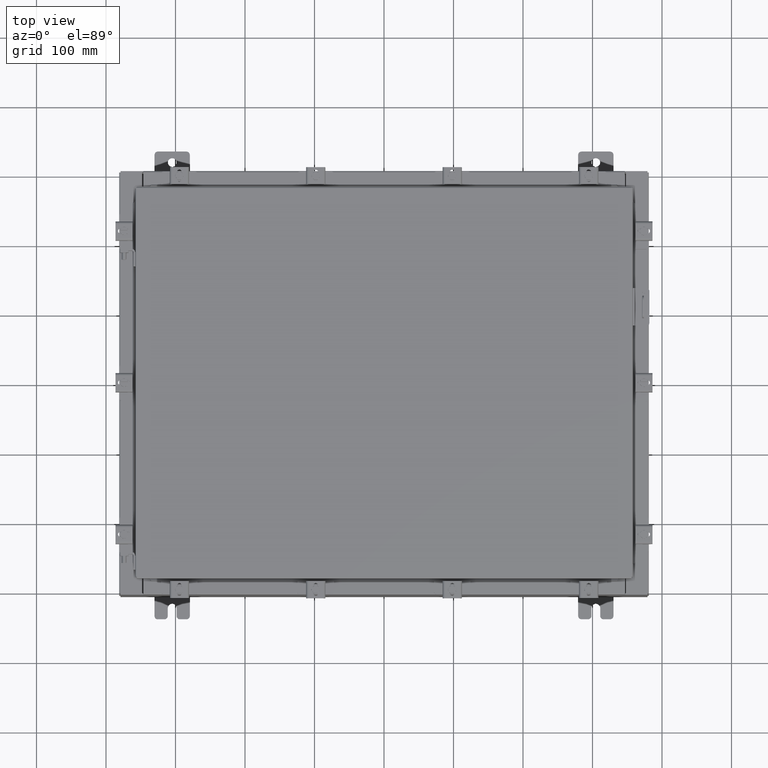
[diagram: clean part render]
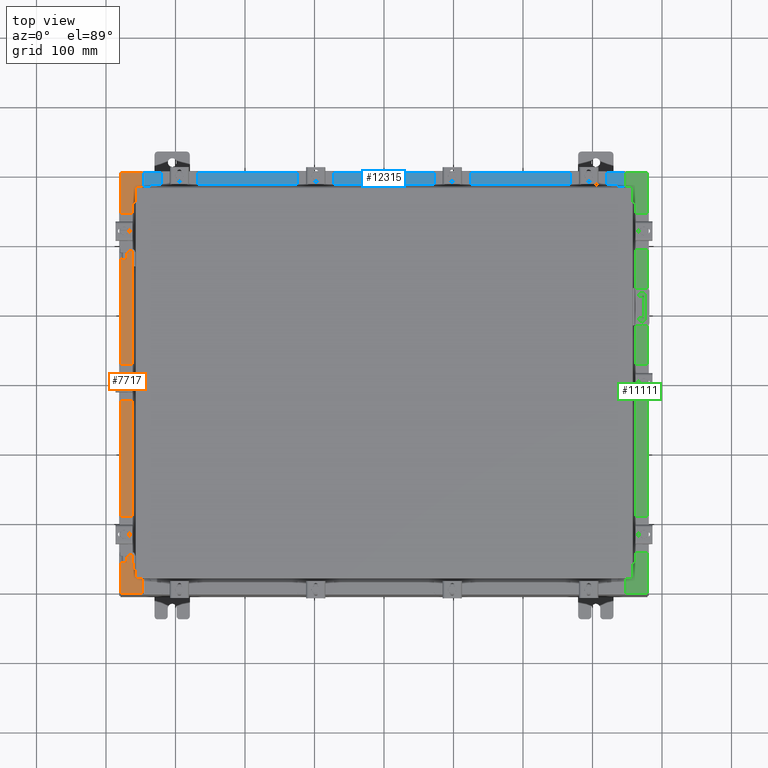
[diagram: same view with three faces highlighted in distinct colors, each labeled with its STEP entity id]
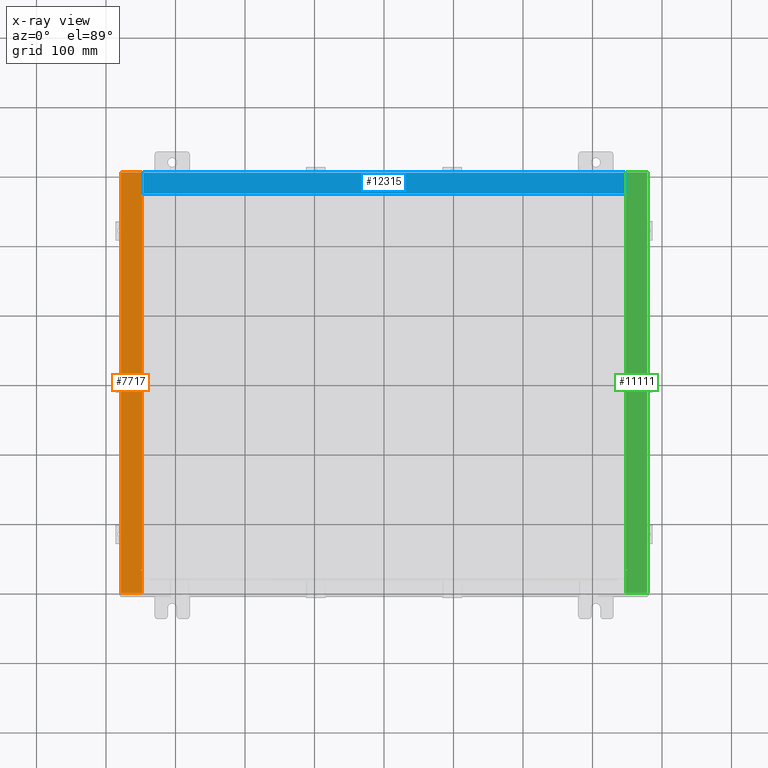
[diagram: x-ray of the same camera — body ghosted, the three highlighted faces saturated]
A machine part, top view with three faces highlighted in distinct colors.
The next image is the same camera in x-ray (body ghosted, the three faces saturated) — at least one of them is partly hidden behind the body in this view.
Their STEP definitions:

[orange] entity #7717 — the highlighted planar face has unit normal (0, 0, -1).
#227 = EDGE_CURVE ( 'NONE', #15956, #16146, #12441, .T. ) ;
#289 = EDGE_CURVE ( 'NONE', #12406, #11165, #6735, .T. ) ;
#305 = CARTESIAN_POINT ( 'NONE',  ( -5.679009539018309800E-014, 0.0000000000000000000, 7.925300000000105700 ) ) ;
#419 = CARTESIAN_POINT ( 'NONE',  ( -13.75005000000002800, -10.63109999999999600, 7.925300000000007100 ) ) ;
#479 = DIRECTION ( 'NONE',  ( 1.000000000000000000, 0.0000000000000000000, 0.0000000000000000000 ) ) ;
#534 = AXIS2_PLACEMENT_3D ( 'NONE', #305, #5590, #17869 ) ;
#769 = LINE ( 'NONE', #22613, #4880 ) ;
#902 = VECTOR ( 'NONE', #13163, 39.37007874015748100 ) ;
#906 = ORIENTED_EDGE ( 'NONE', *, *, #3822, .F. ) ;
#1203 = VECTOR ( 'NONE', #8824, 39.37007874015748100 ) ;
#1433 = EDGE_CURVE ( 'NONE', #12406, #21747, #8583, .T. ) ;
#1603 = EDGE_CURVE ( 'NONE', #2252, #15451, #16251, .T. ) ;
#2242 = VERTEX_POINT ( 'NONE', #419 ) ;
#2252 = VERTEX_POINT ( 'NONE', #15794 ) ;
#2307 = FACE_OUTER_BOUND ( 'NONE', #17364, .T. ) ;
#2429 = ORIENTED_EDGE ( 'NONE', *, *, #4265, .T. ) ;
#2669 = DIRECTION ( 'NONE',  ( -0.0000000000000000000, 1.000000000000000000, -0.0000000000000000000 ) ) ;
#2857 = CIRCLE ( 'NONE', #6604, 0.01867499999999949400 ) ;
#2963 = DIRECTION ( 'NONE',  ( 0.0000000000000000000, 1.000000000000000000, 0.0000000000000000000 ) ) ;
#3078 = DIRECTION ( 'NONE',  ( -1.000000000000000000, 0.0000000000000000000, 0.0000000000000000000 ) ) ;
#3160 = VECTOR ( 'NONE', #14446, 39.37007874015748100 ) ;
#3384 = EDGE_CURVE ( 'NONE', #2242, #17627, #21471, .T. ) ;
#3479 = EDGE_CURVE ( 'NONE', #15243, #15956, #2857, .T. ) ;
#3481 = DIRECTION ( 'NONE',  ( 1.000000000000000000, -0.0000000000000000000, 7.132762385546384700E-015 ) ) ;
#3759 = CARTESIAN_POINT ( 'NONE',  ( -13.69970000000003000, -11.92530000000000000, 7.925300000000008900 ) ) ;
#3822 = EDGE_CURVE ( 'NONE', #3945, #15243, #10728, .T. ) ;
#3945 = VERTEX_POINT ( 'NONE', #22306 ) ;
#3987 = ORIENTED_EDGE ( 'NONE', *, *, #227, .F. ) ;
#4265 = EDGE_CURVE ( 'NONE', #5645, #21747, #19839, .T. ) ;
#4311 = ORIENTED_EDGE ( 'NONE', *, *, #1433, .F. ) ;
#4328 = CARTESIAN_POINT ( 'NONE',  ( -14.91230000000002900, 11.92529999999999800, 7.925300000000000000 ) ) ;
#4813 = ORIENTED_EDGE ( 'NONE', *, *, #289, .T. ) ;
#4880 = VECTOR ( 'NONE', #15668, 39.37007874015748100 ) ;
#4937 = VECTOR ( 'NONE', #2963, 39.37007874015748100 ) ;
#5020 = CARTESIAN_POINT ( 'NONE',  ( -13.71270000000003000, 10.59374999999999800, 7.925300000000008900 ) ) ;
#5590 = DIRECTION ( 'NONE',  ( 7.132762385546384700E-015, 0.0000000000000000000, -1.000000000000000000 ) ) ;
#5645 = VERTEX_POINT ( 'NONE', #13145 ) ;
#5648 = DIRECTION ( 'NONE',  ( 1.000000000000000000, 0.0000000000000000000, 0.0000000000000000000 ) ) ;
#5891 = ORIENTED_EDGE ( 'NONE', *, *, #1603, .F. ) ;
#6279 = EDGE_CURVE ( 'NONE', #11165, #17627, #9556, .T. ) ;
#6604 = AXIS2_PLACEMENT_3D ( 'NONE', #13049, #13329, #5648 ) ;
#6735 = LINE ( 'NONE', #21454, #20167 ) ;
#6820 = CARTESIAN_POINT ( 'NONE',  ( -13.75005000000002800, -10.59374999999999800, 7.925300000000007100 ) ) ;
#7202 = LINE ( 'NONE', #20192, #902 ) ;
#7717 = ADVANCED_FACE ( 'NONE', ( #2307 ), #14276, .F. ) ;
#7886 = ORIENTED_EDGE ( 'NONE', *, *, #3384, .F. ) ;
#7964 = CARTESIAN_POINT ( 'NONE',  ( -13.75005000000002800, 10.63109999999999600, 7.925300000000007100 ) ) ;
#8583 = LINE ( 'NONE', #4328, #21996 ) ;
#8747 = CARTESIAN_POINT ( 'NONE',  ( -13.75005000000002800, 10.59374999999999800, 7.925300000000008900 ) ) ;
#8824 = DIRECTION ( 'NONE',  ( -1.000000000000000000, 0.0000000000000000000, -7.132762385546384700E-015 ) ) ;
#9326 = CARTESIAN_POINT ( 'NONE',  ( -5.679009539018309800E-014, 11.92529999999999800, 7.925300000000105700 ) ) ;
#9391 = CARTESIAN_POINT ( 'NONE',  ( -13.75005000000002800, -10.61242499999999800, 7.925300000000008900 ) ) ;
#9556 = LINE ( 'NONE', #18618, #4937 ) ;
#9829 = CARTESIAN_POINT ( 'NONE',  ( -14.91230000000002900, -11.92530000000000000, 7.925300000000000000 ) ) ;
#10167 = EDGE_CURVE ( 'NONE', #3945, #5645, #7202, .T. ) ;
#10305 = CARTESIAN_POINT ( 'NONE',  ( -13.71270000000003000, -10.59374999999999800, 7.925300000000008900 ) ) ;
#10728 = LINE ( 'NONE', #20041, #20128 ) ;
#10960 = ORIENTED_EDGE ( 'NONE', *, *, #10167, .T. ) ;
#11133 = DIRECTION ( 'NONE',  ( 1.000000000000000000, 0.0000000000000000000, 0.0000000000000000000 ) ) ;
#11155 = ORIENTED_EDGE ( 'NONE', *, *, #3479, .F. ) ;
#11165 = VERTEX_POINT ( 'NONE', #3759 ) ;
#12159 = ORIENTED_EDGE ( 'NONE', *, *, #18034, .F. ) ;
#12406 = VERTEX_POINT ( 'NONE', #9829 ) ;
#12441 = LINE ( 'NONE', #8747, #3160 ) ;
#13049 = CARTESIAN_POINT ( 'NONE',  ( -13.75005000000002800, 10.61242499999999800, 7.925300000000008900 ) ) ;
#13145 = CARTESIAN_POINT ( 'NONE',  ( -13.69970000000003000, 11.92529999999999800, 7.925300000000008900 ) ) ;
#13163 = DIRECTION ( 'NONE',  ( 0.0000000000000000000, 1.000000000000000000, 0.0000000000000000000 ) ) ;
#13329 = DIRECTION ( 'NONE',  ( -7.132762385546384700E-015, -0.0000000000000000000, 1.000000000000000000 ) ) ;
#13447 = CARTESIAN_POINT ( 'NONE',  ( -14.91230000000002900, 11.92529999999999800, 7.925300000000000000 ) ) ;
#14276 = PLANE ( 'NONE',  #534 ) ;
#14446 = DIRECTION ( 'NONE',  ( 1.000000000000000000, 0.0000000000000000000, 0.0000000000000000000 ) ) ;
#15115 = EDGE_CURVE ( 'NONE', #15451, #2242, #16224, .T. ) ;
#15243 = VERTEX_POINT ( 'NONE', #7964 ) ;
#15451 = VERTEX_POINT ( 'NONE', #6820 ) ;
#15668 = DIRECTION ( 'NONE',  ( -0.0000000000000000000, -1.000000000000000000, -0.0000000000000000000 ) ) ;
#15705 = VECTOR ( 'NONE', #3078, 39.37007874015748100 ) ;
#15794 = CARTESIAN_POINT ( 'NONE',  ( -13.71270000000003000, -10.59374999999999800, 7.925300000000008900 ) ) ;
#15956 = VERTEX_POINT ( 'NONE', #18613 ) ;
#16146 = VERTEX_POINT ( 'NONE', #5020 ) ;
#16224 = CIRCLE ( 'NONE', #16273, 0.01867499999999949400 ) ;
#16251 = LINE ( 'NONE', #10305, #15705 ) ;
#16273 = AXIS2_PLACEMENT_3D ( 'NONE', #9391, #21642, #11133 ) ;
#16865 = VECTOR ( 'NONE', #479, 39.37007874015748100 ) ;
#17364 = EDGE_LOOP ( 'NONE', ( #906, #10960, #2429, #4311, #4813, #18701, #7886, #21192, #5891, #12159, #3987, #11155 ) ) ;
#17627 = VERTEX_POINT ( 'NONE', #18087 ) ;
#17869 = DIRECTION ( 'NONE',  ( -1.000000000000000000, 0.0000000000000000000, -7.132762385546384700E-015 ) ) ;
#18034 = EDGE_CURVE ( 'NONE', #16146, #2252, #769, .T. ) ;
#18087 = CARTESIAN_POINT ( 'NONE',  ( -13.69970000000003000, -10.63109999999999800, 7.925300000000008900 ) ) ;
#18613 = CARTESIAN_POINT ( 'NONE',  ( -13.75005000000002800, 10.59374999999999800, 7.925300000000007100 ) ) ;
#18618 = CARTESIAN_POINT ( 'NONE',  ( -13.69970000000003000, 0.0000000000000000000, 7.925300000000008900 ) ) ;
#18701 = ORIENTED_EDGE ( 'NONE', *, *, #6279, .T. ) ;
#19839 = LINE ( 'NONE', #9326, #1203 ) ;
#19912 = DIRECTION ( 'NONE',  ( -1.000000000000000000, 0.0000000000000000000, 0.0000000000000000000 ) ) ;
#20041 = CARTESIAN_POINT ( 'NONE',  ( -13.69970000000003000, 10.63109999999999600, 7.925300000000008900 ) ) ;
#20128 = VECTOR ( 'NONE', #19912, 39.37007874015748100 ) ;
#20167 = VECTOR ( 'NONE', #3481, 39.37007874015748100 ) ;
#20192 = CARTESIAN_POINT ( 'NONE',  ( -13.69970000000003000, 0.0000000000000000000, 7.925300000000008900 ) ) ;
#21192 = ORIENTED_EDGE ( 'NONE', *, *, #15115, .F. ) ;
#21454 = CARTESIAN_POINT ( 'NONE',  ( -5.679009539018309800E-014, -11.92530000000000000, 7.925300000000105700 ) ) ;
#21471 = LINE ( 'NONE', #21818, #16865 ) ;
#21642 = DIRECTION ( 'NONE',  ( -7.132762385546384700E-015, -0.0000000000000000000, 1.000000000000000000 ) ) ;
#21747 = VERTEX_POINT ( 'NONE', #13447 ) ;
#21818 = CARTESIAN_POINT ( 'NONE',  ( -13.75005000000002800, -10.63109999999999600, 7.925300000000008900 ) ) ;
#21996 = VECTOR ( 'NONE', #2669, 39.37007874015748100 ) ;
#22306 = CARTESIAN_POINT ( 'NONE',  ( -13.69970000000003000, 10.63109999999999600, 7.925300000000008900 ) ) ;
#22613 = CARTESIAN_POINT ( 'NONE',  ( -13.71270000000003000, 10.59374999999999800, 7.925300000000008900 ) ) ;

[blue] entity #12315 — the highlighted planar face has unit normal (0, 0, 1).
#855 = CARTESIAN_POINT ( 'NONE',  ( -1.756834753793995900E-018, -0.08770000000000000000, 4.000000000000000900 ) ) ;
#1816 = EDGE_LOOP ( 'NONE', ( #7585, #17931, #6157, #22404 ) ) ;
#2094 = CARTESIAN_POINT ( 'NONE',  ( 13.63720000000000400, -0.08769999999999965300, 4.000000000000000000 ) ) ;
#2160 = FACE_OUTER_BOUND ( 'NONE', #1816, .T. ) ;
#2392 = LINE ( 'NONE', #18403, #5961 ) ;
#2849 = DIRECTION ( 'NONE',  ( -0.0000000000000000000, -1.000000000000000000, 3.566381192773190000E-015 ) ) ;
#4609 = CARTESIAN_POINT ( 'NONE',  ( 13.63720000000000400, -1.300299999999999800, 4.000000000000004400 ) ) ;
#5961 = VECTOR ( 'NONE', #14728, 39.37007874015748100 ) ;
#6009 = CARTESIAN_POINT ( 'NONE',  ( -13.63719999999999800, -1.287299999999999200, 4.000000000000004400 ) ) ;
#6149 = DIRECTION ( 'NONE',  ( 0.0000000000000000000, 3.566381192773190000E-015, 1.000000000000000000 ) ) ;
#6157 = ORIENTED_EDGE ( 'NONE', *, *, #19066, .F. ) ;
#6393 = CARTESIAN_POINT ( 'NONE',  ( 13.63720000000000400, -1.287299999999999900, 4.000000000000003600 ) ) ;
#6476 = DIRECTION ( 'NONE',  ( -1.000000000000000000, 0.0000000000000000000, 0.0000000000000000000 ) ) ;
#6638 = LINE ( 'NONE', #855, #11237 ) ;
#7585 = ORIENTED_EDGE ( 'NONE', *, *, #22323, .F. ) ;
#10249 = EDGE_CURVE ( 'NONE', #19288, #21524, #22512, .T. ) ;
#10645 = EDGE_CURVE ( 'NONE', #16344, #22225, #6638, .T. ) ;
#11108 = AXIS2_PLACEMENT_3D ( 'NONE', #11306, #6149, #18415 ) ;
#11237 = VECTOR ( 'NONE', #20096, 39.37007874015748100 ) ;
#11306 = CARTESIAN_POINT ( 'NONE',  ( 0.0000000000000000000, 1.425992975200418500E-014, 4.000000000000000000 ) ) ;
#12315 = ADVANCED_FACE ( 'NONE', ( #2160 ), #16571, .T. ) ;
#13551 = VECTOR ( 'NONE', #2849, 39.37007874015748100 ) ;
#14728 = DIRECTION ( 'NONE',  ( -0.0000000000000000000, 1.000000000000000000, -3.566381192773190000E-015 ) ) ;
#16344 = VERTEX_POINT ( 'NONE', #2094 ) ;
#16571 = PLANE ( 'NONE',  #11108 ) ;
#17418 = CARTESIAN_POINT ( 'NONE',  ( 13.63720000000000400, -1.287299999999999900, 4.000000000000004400 ) ) ;
#17904 = VECTOR ( 'NONE', #6476, 39.37007874015748100 ) ;
#17931 = ORIENTED_EDGE ( 'NONE', *, *, #10249, .F. ) ;
#18258 = CARTESIAN_POINT ( 'NONE',  ( -13.63719999999999800, -0.08770000000000000000, 4.000000000000000000 ) ) ;
#18284 = LINE ( 'NONE', #4609, #13551 ) ;
#18403 = CARTESIAN_POINT ( 'NONE',  ( -13.63719999999999800, -0.07469999999999973900, 4.000000000000000000 ) ) ;
#18415 = DIRECTION ( 'NONE',  ( 0.0000000000000000000, -1.000000000000000000, 3.566381192773190000E-015 ) ) ;
#19066 = EDGE_CURVE ( 'NONE', #16344, #19288, #18284, .T. ) ;
#19288 = VERTEX_POINT ( 'NONE', #17418 ) ;
#20096 = DIRECTION ( 'NONE',  ( -1.000000000000000000, 2.003232330437526000E-017, -7.144290108027600900E-032 ) ) ;
#21524 = VERTEX_POINT ( 'NONE', #6009 ) ;
#22225 = VERTEX_POINT ( 'NONE', #18258 ) ;
#22323 = EDGE_CURVE ( 'NONE', #21524, #22225, #2392, .T. ) ;
#22404 = ORIENTED_EDGE ( 'NONE', *, *, #10645, .T. ) ;
#22512 = LINE ( 'NONE', #6393, #17904 ) ;

[green] entity #11111 — the highlighted planar face has unit normal (-0, -0, -1).
#384 = LINE ( 'NONE', #6585, #14316 ) ;
#741 = CARTESIAN_POINT ( 'NONE',  ( 13.75005000000002800, 10.63109999999999300, 7.925300000000011600 ) ) ;
#865 = ORIENTED_EDGE ( 'NONE', *, *, #19165, .F. ) ;
#1828 = CARTESIAN_POINT ( 'NONE',  ( 13.75005000000002800, -10.63110000000000200, 7.925300000000008900 ) ) ;
#2587 = CARTESIAN_POINT ( 'NONE',  ( 13.69970000000003000, -10.63110000000000200, 7.925300000000010700 ) ) ;
#3021 = LINE ( 'NONE', #2587, #7139 ) ;
#3152 = CARTESIAN_POINT ( 'NONE',  ( 13.75005000000002800, -10.61242500000000200, 7.925300000000011600 ) ) ;
#3585 = DIRECTION ( 'NONE',  ( 6.241167087353086200E-015, 4.581600452255730400E-017, 1.000000000000000000 ) ) ;
#3680 = VERTEX_POINT ( 'NONE', #13721 ) ;
#3788 = CARTESIAN_POINT ( 'NONE',  ( 13.75005000000002800, -10.59375000000000200, 7.925300000000011600 ) ) ;
#3964 = CARTESIAN_POINT ( 'NONE',  ( 13.69970000000003000, 11.92529999999999600, 7.925300000000008900 ) ) ;
#4680 = CARTESIAN_POINT ( 'NONE',  ( 13.71270000000003000, -10.59375000000000200, 7.925300000000011600 ) ) ;
#4807 = DIRECTION ( 'NONE',  ( 1.000000000000000000, 0.0000000000000000000, 0.0000000000000000000 ) ) ;
#4831 = CARTESIAN_POINT ( 'NONE',  ( 13.75005000000002800, 10.59374999999999300, 7.925300000000007100 ) ) ;
#4847 = DIRECTION ( 'NONE',  ( -4.379057701015054300E-047, -1.000000000000000000, 4.581600452255731000E-017 ) ) ;
#4907 = DIRECTION ( 'NONE',  ( 1.000000000000000000, 0.0000000000000000000, 0.0000000000000000000 ) ) ;
#5132 = ORIENTED_EDGE ( 'NONE', *, *, #16671, .F. ) ;
#5365 = CARTESIAN_POINT ( 'NONE',  ( 4.972393517341157600E-014, 3.631055806426276900E-016, 7.925300000000094200 ) ) ;
#5637 = ORIENTED_EDGE ( 'NONE', *, *, #7023, .T. ) ;
#6155 = EDGE_CURVE ( 'NONE', #20997, #8224, #3021, .T. ) ;
#6511 = EDGE_LOOP ( 'NONE', ( #9893, #8369, #21052, #8125, #14197, #5637, #20389, #11274, #16135, #5132, #19108, #865 ) ) ;
#6585 = CARTESIAN_POINT ( 'NONE',  ( 4.972393517341157600E-014, -11.92530000000000400, 7.925300000000095000 ) ) ;
#6601 = EDGE_CURVE ( 'NONE', #14871, #12145, #22170, .T. ) ;
#6727 = CARTESIAN_POINT ( 'NONE',  ( 13.69970000000003000, 10.63109999999999500, 7.925300000000008900 ) ) ;
#6729 = EDGE_CURVE ( 'NONE', #10092, #8665, #11170, .T. ) ;
#7023 = EDGE_CURVE ( 'NONE', #15658, #17950, #20181, .T. ) ;
#7127 = CARTESIAN_POINT ( 'NONE',  ( 4.972393517341157600E-014, 11.92529999999999600, 7.925300000000094200 ) ) ;
#7128 = DIRECTION ( 'NONE',  ( -1.000000000000000000, 0.0000000000000000000, 6.241167087353086200E-015 ) ) ;
#7139 = VECTOR ( 'NONE', #20145, 39.37007874015748100 ) ;
#7389 = LINE ( 'NONE', #4680, #16155 ) ;
#7597 = CIRCLE ( 'NONE', #21884, 0.01867499999999949400 ) ;
#7612 = EDGE_CURVE ( 'NONE', #10092, #15658, #12694, .T. ) ;
#8056 = EDGE_CURVE ( 'NONE', #3680, #8665, #384, .T. ) ;
#8125 = ORIENTED_EDGE ( 'NONE', *, *, #6729, .F. ) ;
#8224 = VERTEX_POINT ( 'NONE', #1828 ) ;
#8258 = FACE_OUTER_BOUND ( 'NONE', #6511, .T. ) ;
#8295 = CARTESIAN_POINT ( 'NONE',  ( 13.69970000000003000, 3.631055806426237500E-016, 7.925300000000008900 ) ) ;
#8369 = ORIENTED_EDGE ( 'NONE', *, *, #19404, .T. ) ;
#8665 = VERTEX_POINT ( 'NONE', #18839 ) ;
#9485 = LINE ( 'NONE', #10513, #13580 ) ;
#9812 = LINE ( 'NONE', #741, #14462 ) ;
#9893 = ORIENTED_EDGE ( 'NONE', *, *, #6155, .F. ) ;
#9950 = CARTESIAN_POINT ( 'NONE',  ( 13.71270000000003000, -10.59375000000000200, 7.925300000000011600 ) ) ;
#10073 = VECTOR ( 'NONE', #14607, 39.37007874015748100 ) ;
#10092 = VERTEX_POINT ( 'NONE', #14762 ) ;
#10513 = CARTESIAN_POINT ( 'NONE',  ( 13.69970000000003000, 3.631055806426237500E-016, 7.925300000000008900 ) ) ;
#10566 = CIRCLE ( 'NONE', #10838, 0.01867499999999949400 ) ;
#10838 = AXIS2_PLACEMENT_3D ( 'NONE', #14044, #3585, #15852 ) ;
#11111 = ADVANCED_FACE ( 'NONE', ( #8258 ), #14053, .F. ) ;
#11170 = LINE ( 'NONE', #21601, #10073 ) ;
#11174 = DIRECTION ( 'NONE',  ( -1.000000000000000000, 0.0000000000000000000, -2.170286390200049500E-014 ) ) ;
#11274 = ORIENTED_EDGE ( 'NONE', *, *, #19403, .F. ) ;
#11922 = EDGE_CURVE ( 'NONE', #15062, #17950, #9812, .T. ) ;
#12145 = VERTEX_POINT ( 'NONE', #9950 ) ;
#12694 = LINE ( 'NONE', #7127, #17423 ) ;
#12860 = AXIS2_PLACEMENT_3D ( 'NONE', #5365, #17645, #7128 ) ;
#13580 = VECTOR ( 'NONE', #21051, 39.37007874015748100 ) ;
#13721 = CARTESIAN_POINT ( 'NONE',  ( 13.69970000000003000, -11.92530000000000400, 7.925300000000009800 ) ) ;
#14044 = CARTESIAN_POINT ( 'NONE',  ( 13.75005000000002800, 10.61242499999999300, 7.925300000000011600 ) ) ;
#14053 = PLANE ( 'NONE',  #12860 ) ;
#14197 = ORIENTED_EDGE ( 'NONE', *, *, #7612, .T. ) ;
#14316 = VECTOR ( 'NONE', #18870, 39.37007874015748100 ) ;
#14462 = VECTOR ( 'NONE', #11174, 39.37007874015748100 ) ;
#14607 = DIRECTION ( 'NONE',  ( -9.163200904511462000E-017, -1.000000000000000000, 4.581600452255787700E-017 ) ) ;
#14738 = CARTESIAN_POINT ( 'NONE',  ( 13.69970000000003000, -10.63110000000000200, 7.925300000000008900 ) ) ;
#14762 = CARTESIAN_POINT ( 'NONE',  ( 14.91230000000003000, 11.92529999999999600, 7.925300000000000000 ) ) ;
#14871 = VERTEX_POINT ( 'NONE', #18543 ) ;
#15062 = VERTEX_POINT ( 'NONE', #15883 ) ;
#15293 = CARTESIAN_POINT ( 'NONE',  ( 13.71270000000003000, 10.59374999999999300, 7.925300000000011600 ) ) ;
#15387 = DIRECTION ( 'NONE',  ( 6.241167087353086200E-015, 4.581600452255730400E-017, 1.000000000000000000 ) ) ;
#15658 = VERTEX_POINT ( 'NONE', #3964 ) ;
#15852 = DIRECTION ( 'NONE',  ( 1.000000000000000000, 0.0000000000000000000, 0.0000000000000000000 ) ) ;
#15883 = CARTESIAN_POINT ( 'NONE',  ( 13.75005000000002800, 10.63109999999999300, 7.925300000000007100 ) ) ;
#16111 = DIRECTION ( 'NONE',  ( -1.000000000000000000, 0.0000000000000000000, 0.0000000000000000000 ) ) ;
#16135 = ORIENTED_EDGE ( 'NONE', *, *, #19774, .F. ) ;
#16155 = VECTOR ( 'NONE', #20488, 39.37007874015748100 ) ;
#16671 = EDGE_CURVE ( 'NONE', #12145, #19246, #7389, .T. ) ;
#17013 = VECTOR ( 'NONE', #16111, 39.37007874015748100 ) ;
#17327 = CARTESIAN_POINT ( 'NONE',  ( 13.71270000000003000, 10.59374999999999300, 7.925300000000011600 ) ) ;
#17423 = VECTOR ( 'NONE', #17644, 39.37007874015748100 ) ;
#17644 = DIRECTION ( 'NONE',  ( -1.000000000000000000, 0.0000000000000000000, 6.241167087353087800E-015 ) ) ;
#17645 = DIRECTION ( 'NONE',  ( -6.241167087353086200E-015, -4.581600452255731000E-017, -1.000000000000000000 ) ) ;
#17950 = VERTEX_POINT ( 'NONE', #6727 ) ;
#18543 = CARTESIAN_POINT ( 'NONE',  ( 13.75005000000002800, -10.59375000000000200, 7.925300000000007100 ) ) ;
#18549 = VECTOR ( 'NONE', #4847, 39.37007874015748100 ) ;
#18839 = CARTESIAN_POINT ( 'NONE',  ( 14.91230000000003000, -11.92530000000000400, 7.925300000000000900 ) ) ;
#18870 = DIRECTION ( 'NONE',  ( 1.000000000000000000, 0.0000000000000000000, -6.241167087353087800E-015 ) ) ;
#19108 = ORIENTED_EDGE ( 'NONE', *, *, #6601, .F. ) ;
#19163 = VERTEX_POINT ( 'NONE', #4831 ) ;
#19165 = EDGE_CURVE ( 'NONE', #8224, #14871, #7597, .T. ) ;
#19246 = VERTEX_POINT ( 'NONE', #17327 ) ;
#19403 = EDGE_CURVE ( 'NONE', #19163, #15062, #10566, .T. ) ;
#19404 = EDGE_CURVE ( 'NONE', #20997, #3680, #9485, .T. ) ;
#19774 = EDGE_CURVE ( 'NONE', #19246, #19163, #20482, .T. ) ;
#20145 = DIRECTION ( 'NONE',  ( 1.000000000000000000, 0.0000000000000000000, 2.170286390200049500E-014 ) ) ;
#20181 = LINE ( 'NONE', #8295, #18549 ) ;
#20389 = ORIENTED_EDGE ( 'NONE', *, *, #11922, .F. ) ;
#20482 = LINE ( 'NONE', #15293, #21008 ) ;
#20488 = DIRECTION ( 'NONE',  ( -0.0000000000000000000, 1.000000000000000000, -0.0000000000000000000 ) ) ;
#20997 = VERTEX_POINT ( 'NONE', #14738 ) ;
#21008 = VECTOR ( 'NONE', #4807, 39.37007874015748100 ) ;
#21051 = DIRECTION ( 'NONE',  ( -4.379057701015054300E-047, -1.000000000000000000, 4.581600452255731000E-017 ) ) ;
#21052 = ORIENTED_EDGE ( 'NONE', *, *, #8056, .T. ) ;
#21601 = CARTESIAN_POINT ( 'NONE',  ( 14.91230000000002900, -11.92530000000000400, 7.925300000000000900 ) ) ;
#21884 = AXIS2_PLACEMENT_3D ( 'NONE', #3152, #15387, #4907 ) ;
#22170 = LINE ( 'NONE', #3788, #17013 ) ;